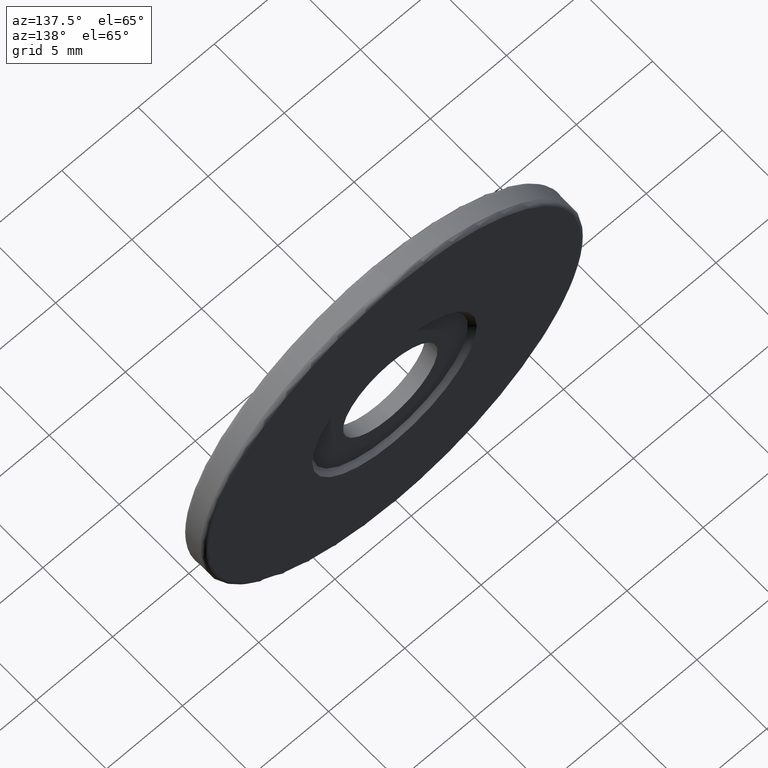
[diagram: clean part render]
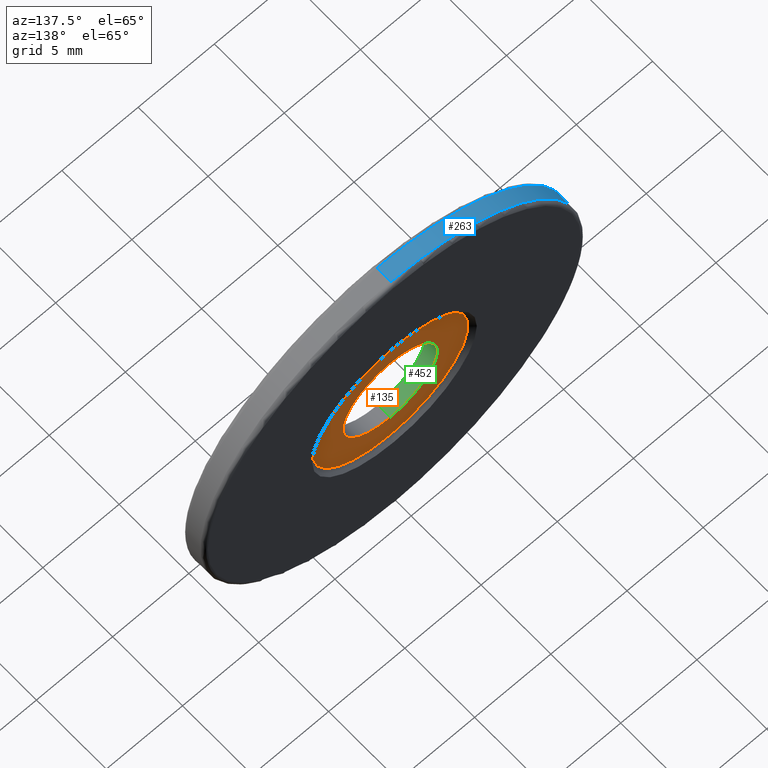
[diagram: same view with three faces highlighted in distinct colors, each labeled with its STEP entity id]
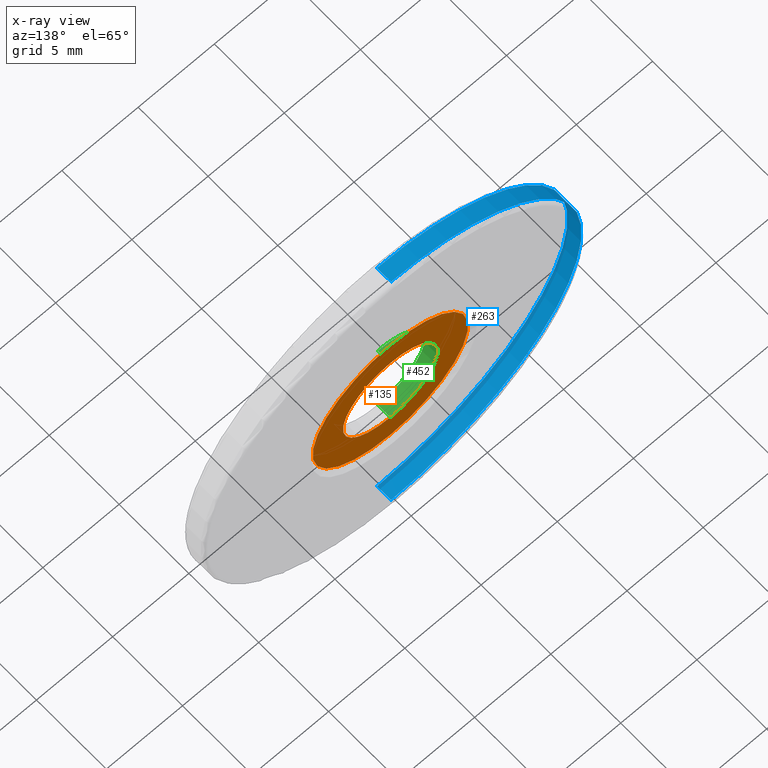
[diagram: x-ray of the same camera — body ghosted, the three highlighted faces saturated]
A machine part, auxiliary view with three faces highlighted in distinct colors.
The next image is the same camera in x-ray (body ghosted, the three faces saturated) — at least one of them is partly hidden behind the body in this view.
Their STEP definitions:

[orange] entity #135 — the highlighted planar face has unit normal (0, 1, 0).
#41 = EDGE_CURVE ( 'NONE', #387, #125, #332, .T. ) ;
#42 = DIRECTION ( 'NONE',  ( 0.0000000000000000000, 1.000000000000000000, 0.0000000000000000000 ) ) ;
#53 = DIRECTION ( 'NONE',  ( 0.0000000000000000000, 0.0000000000000000000, 1.000000000000000000 ) ) ;
#66 = DIRECTION ( 'NONE',  ( 0.0000000000000000000, -0.0000000000000000000, 1.000000000000000000 ) ) ;
#76 = ORIENTED_EDGE ( 'NONE', *, *, #335, .F. ) ;
#79 = DIRECTION ( 'NONE',  ( 0.0000000000000000000, 1.000000000000000000, 0.0000000000000000000 ) ) ;
#94 = CARTESIAN_POINT ( 'NONE',  ( -4.682026255059964726, -1.144975976998274803, 21.90000000000000213 ) ) ;
#99 = FACE_BOUND ( 'NONE', #169, .T. ) ;
#101 = DIRECTION ( 'NONE',  ( 0.0000000000000000000, 1.000000000000000000, 0.0000000000000000000 ) ) ;
#111 = CARTESIAN_POINT ( 'NONE',  ( -4.682026255059964726, -1.144975976998274803, 25.00000000000000000 ) ) ;
#116 = VERTEX_POINT ( 'NONE', #334 ) ;
#121 = ORIENTED_EDGE ( 'NONE', *, *, #41, .T. ) ;
#125 = VERTEX_POINT ( 'NONE', #451 ) ;
#126 = CARTESIAN_POINT ( 'NONE',  ( -4.682026255059964726, -1.144975976998274803, 25.00000000000000000 ) ) ;
#135 = ADVANCED_FACE ( 'NONE', ( #99, #174 ), #417, .T. ) ;
#144 = EDGE_LOOP ( 'NONE', ( #121, #199 ) ) ;
#155 = AXIS2_PLACEMENT_3D ( 'NONE', #126, #240, #281 ) ;
#156 = CARTESIAN_POINT ( 'NONE',  ( -4.682026255059964726, -1.144975976998274803, 25.00000000000000000 ) ) ;
#169 = EDGE_LOOP ( 'NONE', ( #389, #76 ) ) ;
#174 = FACE_OUTER_BOUND ( 'NONE', #144, .T. ) ;
#188 = AXIS2_PLACEMENT_3D ( 'NONE', #111, #79, #352 ) ;
#199 = ORIENTED_EDGE ( 'NONE', *, *, #383, .T. ) ;
#204 = VERTEX_POINT ( 'NONE', #94 ) ;
#229 = AXIS2_PLACEMENT_3D ( 'NONE', #292, #101, #418 ) ;
#240 = DIRECTION ( 'NONE',  ( 0.0000000000000000000, 1.000000000000000000, 0.0000000000000000000 ) ) ;
#244 = AXIS2_PLACEMENT_3D ( 'NONE', #341, #256, #66 ) ;
#256 = DIRECTION ( 'NONE',  ( 0.0000000000000000000, 1.000000000000000000, 0.0000000000000000000 ) ) ;
#281 = DIRECTION ( 'NONE',  ( 0.0000000000000000000, 0.0000000000000000000, 1.000000000000000000 ) ) ;
#288 = AXIS2_PLACEMENT_3D ( 'NONE', #156, #42, #53 ) ;
#292 = CARTESIAN_POINT ( 'NONE',  ( -4.682026255059964726, -1.144975976998274803, 25.00000000000000000 ) ) ;
#332 = CIRCLE ( 'NONE', #229, 5.100000000000000533 ) ;
#334 = CARTESIAN_POINT ( 'NONE',  ( -4.682026255059964726, -1.144975976998274803, 28.10000000000000142 ) ) ;
#335 = EDGE_CURVE ( 'NONE', #204, #116, #346, .T. ) ;
#341 = CARTESIAN_POINT ( 'NONE',  ( -4.682026255059964726, -1.144975976998274803, 25.00000000000000000 ) ) ;
#346 = CIRCLE ( 'NONE', #188, 3.099999999999998757 ) ;
#352 = DIRECTION ( 'NONE',  ( 0.0000000000000000000, 0.0000000000000000000, 1.000000000000000000 ) ) ;
#383 = EDGE_CURVE ( 'NONE', #125, #387, #398, .T. ) ;
#387 = VERTEX_POINT ( 'NONE', #396 ) ;
#389 = ORIENTED_EDGE ( 'NONE', *, *, #411, .F. ) ;
#396 = CARTESIAN_POINT ( 'NONE',  ( -4.682026255059964726, -1.144975976998274803, 30.10000000000000142 ) ) ;
#398 = CIRCLE ( 'NONE', #155, 5.100000000000000533 ) ;
#411 = EDGE_CURVE ( 'NONE', #116, #204, #465, .T. ) ;
#417 = PLANE ( 'NONE',  #244 ) ;
#418 = DIRECTION ( 'NONE',  ( 0.0000000000000000000, 0.0000000000000000000, 1.000000000000000000 ) ) ;
#451 = CARTESIAN_POINT ( 'NONE',  ( -4.682026255059963837, -1.144975976998274803, 19.90000000000000213 ) ) ;
#465 = CIRCLE ( 'NONE', #288, 3.099999999999998757 ) ;

[blue] entity #263 — the highlighted cylindrical surface (partial cylindrical patch) has radius 12.5 mm, axis along (-0, -1, -0).
#8 = CARTESIAN_POINT ( 'NONE',  ( -4.682026255059962949, -0.8449759769982747581, 37.50000000000000711 ) ) ;
#43 = VERTEX_POINT ( 'NONE', #209 ) ;
#50 = DIRECTION ( 'NONE',  ( -0.0000000000000000000, -1.000000000000000000, -0.0000000000000000000 ) ) ;
#67 = EDGE_CURVE ( 'NONE', #284, #207, #134, .T. ) ;
#70 = AXIS2_PLACEMENT_3D ( 'NONE', #74, #502, #424 ) ;
#74 = CARTESIAN_POINT ( 'NONE',  ( -4.682026255059964726, -0.8449759769982747581, 25.00000000000000000 ) ) ;
#110 = ORIENTED_EDGE ( 'NONE', *, *, #434, .T. ) ;
#114 = AXIS2_PLACEMENT_3D ( 'NONE', #360, #486, #363 ) ;
#129 = EDGE_LOOP ( 'NONE', ( #489, #479, #191, #110 ) ) ;
#134 = LINE ( 'NONE', #221, #438 ) ;
#147 = VECTOR ( 'NONE', #50, 1000.000000000000000 ) ;
#161 = VERTEX_POINT ( 'NONE', #337 ) ;
#185 = CARTESIAN_POINT ( 'NONE',  ( -4.682026255059964726, -2.094975976998274536, 12.50000000000000000 ) ) ;
#191 = ORIENTED_EDGE ( 'NONE', *, *, #67, .T. ) ;
#206 = EDGE_CURVE ( 'NONE', #161, #284, #237, .T. ) ;
#207 = VERTEX_POINT ( 'NONE', #185 ) ;
#209 = CARTESIAN_POINT ( 'NONE',  ( -4.682026255059962949, -2.094975976998274536, 37.50000000000000711 ) ) ;
#221 = CARTESIAN_POINT ( 'NONE',  ( -4.682026255059964726, -0.8449759769982747581, 12.50000000000000000 ) ) ;
#223 = CARTESIAN_POINT ( 'NONE',  ( -4.682026255059962949, -1.094975976998274758, 12.50000000000000000 ) ) ;
#228 = FACE_OUTER_BOUND ( 'NONE', #129, .T. ) ;
#237 = CIRCLE ( 'NONE', #500, 12.50000000000000355 ) ;
#248 = CARTESIAN_POINT ( 'NONE',  ( -4.682026255059964726, -1.094975976998274758, 25.00000000000000000 ) ) ;
#252 = DIRECTION ( 'NONE',  ( -0.0000000000000000000, -1.000000000000000000, -0.0000000000000000000 ) ) ;
#263 = ADVANCED_FACE ( 'NONE', ( #228 ), #512, .T. ) ;
#284 = VERTEX_POINT ( 'NONE', #223 ) ;
#325 = LINE ( 'NONE', #8, #147 ) ;
#337 = CARTESIAN_POINT ( 'NONE',  ( -4.682026255059964726, -1.094975976998274758, 37.50000000000000711 ) ) ;
#350 = DIRECTION ( 'NONE',  ( 0.0000000000000000000, 0.0000000000000000000, 1.000000000000000000 ) ) ;
#360 = CARTESIAN_POINT ( 'NONE',  ( -4.682026255059964726, -2.094975976998274536, 25.00000000000000000 ) ) ;
#363 = DIRECTION ( 'NONE',  ( 0.0000000000000000000, 0.0000000000000000000, 1.000000000000000000 ) ) ;
#409 = DIRECTION ( 'NONE',  ( -0.0000000000000000000, -1.000000000000000000, -0.0000000000000000000 ) ) ;
#424 = DIRECTION ( 'NONE',  ( 0.0000000000000000000, 0.0000000000000000000, -1.000000000000000000 ) ) ;
#427 = EDGE_CURVE ( 'NONE', #161, #43, #325, .T. ) ;
#429 = CIRCLE ( 'NONE', #114, 12.50000000000000355 ) ;
#434 = EDGE_CURVE ( 'NONE', #207, #43, #429, .T. ) ;
#438 = VECTOR ( 'NONE', #252, 1000.000000000000000 ) ;
#479 = ORIENTED_EDGE ( 'NONE', *, *, #206, .T. ) ;
#486 = DIRECTION ( 'NONE',  ( 0.0000000000000000000, 1.000000000000000000, 0.0000000000000000000 ) ) ;
#489 = ORIENTED_EDGE ( 'NONE', *, *, #427, .F. ) ;
#500 = AXIS2_PLACEMENT_3D ( 'NONE', #248, #409, #350 ) ;
#502 = DIRECTION ( 'NONE',  ( -0.0000000000000000000, -1.000000000000000000, -0.0000000000000000000 ) ) ;
#512 = CYLINDRICAL_SURFACE ( 'NONE', #70, 12.50000000000000000 ) ;

[green] entity #452 — the highlighted cylindrical surface (partial cylindrical patch) has radius 3.1 mm, axis along (-0, 1, -0).
#2 = VECTOR ( 'NONE', #224, 1000.000000000000000 ) ;
#45 = FACE_OUTER_BOUND ( 'NONE', #313, .T. ) ;
#48 = VERTEX_POINT ( 'NONE', #454 ) ;
#58 = EDGE_CURVE ( 'NONE', #241, #48, #164, .T. ) ;
#63 = DIRECTION ( 'NONE',  ( -0.0000000000000000000, 1.000000000000000000, -0.0000000000000000000 ) ) ;
#69 = DIRECTION ( 'NONE',  ( 0.0000000000000000000, 0.0000000000000000000, -1.000000000000000000 ) ) ;
#79 = DIRECTION ( 'NONE',  ( 0.0000000000000000000, 1.000000000000000000, 0.0000000000000000000 ) ) ;
#87 = LINE ( 'NONE', #402, #348 ) ;
#94 = CARTESIAN_POINT ( 'NONE',  ( -4.682026255059964726, -1.144975976998274803, 21.90000000000000213 ) ) ;
#111 = CARTESIAN_POINT ( 'NONE',  ( -4.682026255059964726, -1.144975976998274803, 25.00000000000000000 ) ) ;
#116 = VERTEX_POINT ( 'NONE', #334 ) ;
#157 = ORIENTED_EDGE ( 'NONE', *, *, #58, .F. ) ;
#164 = CIRCLE ( 'NONE', #260, 3.099999999999998757 ) ;
#165 = CYLINDRICAL_SURFACE ( 'NONE', #439, 3.099999999999998757 ) ;
#188 = AXIS2_PLACEMENT_3D ( 'NONE', #111, #79, #352 ) ;
#194 = DIRECTION ( 'NONE',  ( -0.0000000000000000000, 1.000000000000000000, -0.0000000000000000000 ) ) ;
#204 = VERTEX_POINT ( 'NONE', #94 ) ;
#224 = DIRECTION ( 'NONE',  ( -0.0000000000000000000, 1.000000000000000000, -0.0000000000000000000 ) ) ;
#241 = VERTEX_POINT ( 'NONE', #388 ) ;
#260 = AXIS2_PLACEMENT_3D ( 'NONE', #294, #63, #69 ) ;
#271 = EDGE_CURVE ( 'NONE', #48, #116, #474, .T. ) ;
#294 = CARTESIAN_POINT ( 'NONE',  ( -4.682026255059964726, -2.044975976998274714, 25.00000000000000000 ) ) ;
#301 = CARTESIAN_POINT ( 'NONE',  ( -4.682026255059964726, -2.344975976998274980, 28.10000000000000142 ) ) ;
#313 = EDGE_LOOP ( 'NONE', ( #157, #445, #433, #403 ) ) ;
#317 = DIRECTION ( 'NONE',  ( 0.0000000000000000000, 0.0000000000000000000, 1.000000000000000000 ) ) ;
#334 = CARTESIAN_POINT ( 'NONE',  ( -4.682026255059964726, -1.144975976998274803, 28.10000000000000142 ) ) ;
#335 = EDGE_CURVE ( 'NONE', #204, #116, #346, .T. ) ;
#346 = CIRCLE ( 'NONE', #188, 3.099999999999998757 ) ;
#348 = VECTOR ( 'NONE', #435, 1000.000000000000000 ) ;
#352 = DIRECTION ( 'NONE',  ( 0.0000000000000000000, 0.0000000000000000000, 1.000000000000000000 ) ) ;
#388 = CARTESIAN_POINT ( 'NONE',  ( -4.682026255059964726, -2.044975976998274714, 21.90000000000000213 ) ) ;
#402 = CARTESIAN_POINT ( 'NONE',  ( -4.682026255059964726, -2.344975976998274980, 21.90000000000000213 ) ) ;
#403 = ORIENTED_EDGE ( 'NONE', *, *, #271, .F. ) ;
#420 = EDGE_CURVE ( 'NONE', #241, #204, #87, .T. ) ;
#433 = ORIENTED_EDGE ( 'NONE', *, *, #335, .T. ) ;
#435 = DIRECTION ( 'NONE',  ( -0.0000000000000000000, 1.000000000000000000, -0.0000000000000000000 ) ) ;
#439 = AXIS2_PLACEMENT_3D ( 'NONE', #488, #194, #317 ) ;
#445 = ORIENTED_EDGE ( 'NONE', *, *, #420, .T. ) ;
#452 = ADVANCED_FACE ( 'NONE', ( #45 ), #165, .F. ) ;
#454 = CARTESIAN_POINT ( 'NONE',  ( -4.682026255059964726, -2.044975976998274714, 28.10000000000000142 ) ) ;
#474 = LINE ( 'NONE', #301, #2 ) ;
#488 = CARTESIAN_POINT ( 'NONE',  ( -4.682026255059964726, -2.344975976998274980, 25.00000000000000000 ) ) ;